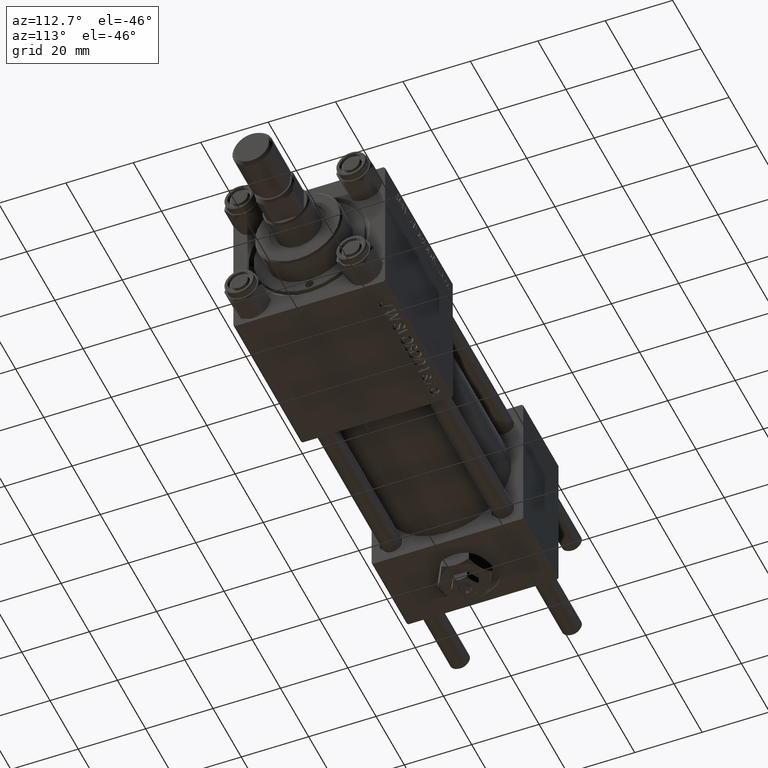
[diagram: clean part render]
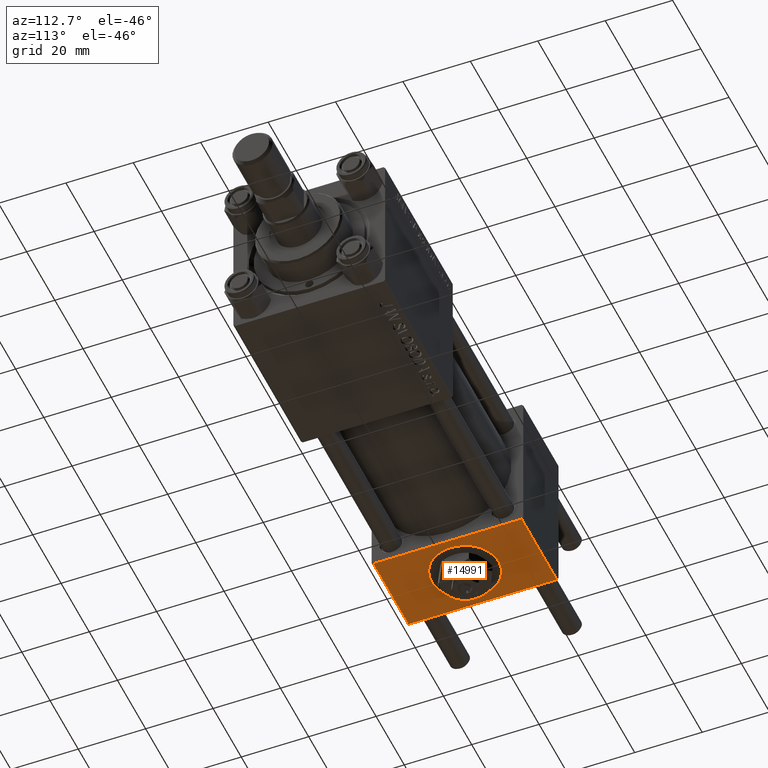
[diagram: same view with one face highlighted and labeled with its STEP entity id]
A machine part, auxiliary view. The second image highlights one B-rep face of the part: STEP entity #14991.
In plain terms, the highlighted planar face has unit normal (0, 0, -1).
Its self-contained STEP definition (entity closure, byte-faithful):
#772 = PLANE ( 'NONE',  #34863 ) ;
#2485 = CARTESIAN_POINT ( 'NONE',  ( 25.00000000000000000, 22.50000000000000000, -22.49999999999999645 ) ) ;
#4989 = CARTESIAN_POINT ( 'NONE',  ( 12.50000000000000000, 10.00000000000000711, -22.50000000000000000 ) ) ;
#5773 = FACE_OUTER_BOUND ( 'NONE', #29412, .T. ) ;
#8220 = VECTOR ( 'NONE', #46588, 1000.000000000000000 ) ;
#10706 = VERTEX_POINT ( 'NONE', #4989 ) ;
#11044 = VERTEX_POINT ( 'NONE', #43681 ) ;
#11177 = CARTESIAN_POINT ( 'NONE',  ( 25.00000000000000000, 21.99999999999999289, -22.49999999999999645 ) ) ;
#12903 = DIRECTION ( 'NONE',  ( 0.000000000000000000, 1.000000000000000000, 2.312964634635742957E-16 ) ) ;
#13679 = DIRECTION ( 'NONE',  ( 0.000000000000000000, 2.312964634635742957E-16, -1.000000000000000000 ) ) ;
#14362 = DIRECTION ( 'NONE',  ( 1.000000000000000000, 0.000000000000000000, 0.000000000000000000 ) ) ;
#14381 = CARTESIAN_POINT ( 'NONE',  ( 0.000000000000000000, -21.99999999999998579, -22.50000000000000711 ) ) ;
#14630 = DIRECTION ( 'NONE',  ( 0.000000000000000000, 1.000000000000000000, 0.000000000000000000 ) ) ;
#14712 = AXIS2_PLACEMENT_3D ( 'NONE', #24281, #36703, #45148 ) ;
#14991 = ADVANCED_FACE ( 'NONE', ( #25819, #5773 ), #772, .T. ) ;
#16471 = VERTEX_POINT ( 'NONE', #51496 ) ;
#17439 = VERTEX_POINT ( 'NONE', #22413 ) ;
#17729 = EDGE_CURVE ( 'NONE', #16471, #10706, #31585, .T. ) ;
#17773 = VECTOR ( 'NONE', #18588, 1000.000000000000000 ) ;
#18588 = DIRECTION ( 'NONE',  ( 0.000000000000000000, -1.000000000000000000, -2.312964634635742957E-16 ) ) ;
#19056 = ORIENTED_EDGE ( 'NONE', *, *, #36367, .T. ) ;
#19361 = EDGE_CURVE ( 'NONE', #41113, #42265, #38651, .T. ) ;
#21932 = CARTESIAN_POINT ( 'NONE',  ( 25.00000000000000000, -21.99999999999997158, -22.50000000000000711 ) ) ;
#22413 = CARTESIAN_POINT ( 'NONE',  ( 0.000000000000000000, -21.99999999999997158, -22.50000000000000711 ) ) ;
#24281 = CARTESIAN_POINT ( 'NONE',  ( 12.50000000000000000, 5.035636875936204037E-15, -22.50000000000000000 ) ) ;
#25291 = CARTESIAN_POINT ( 'NONE',  ( 25.00000000000000000, 22.50000000000000000, -22.49999999999999645 ) ) ;
#25569 = EDGE_CURVE ( 'NONE', #10706, #16471, #30729, .T. ) ;
#25819 = FACE_BOUND ( 'NONE', #46020, .T. ) ;
#29412 = EDGE_LOOP ( 'NONE', ( #45991, #50644, #42792, #19056 ) ) ;
#30213 = DIRECTION ( 'NONE',  ( 0.000000000000000000, -1.000000000000000000, -2.312964634635742957E-16 ) ) ;
#30729 = CIRCLE ( 'NONE', #14712, 10.00000000000000178 ) ;
#31004 = CARTESIAN_POINT ( 'NONE',  ( 0.000000000000000000, 22.50000000000000000, -22.49999999999999645 ) ) ;
#31585 = CIRCLE ( 'NONE', #51861, 10.00000000000000178 ) ;
#32244 = VECTOR ( 'NONE', #30213, 1000.000000000000000 ) ;
#34699 = CARTESIAN_POINT ( 'NONE',  ( 12.50000000000000000, 5.035636875936204037E-15, -22.50000000000000000 ) ) ;
#34863 = AXIS2_PLACEMENT_3D ( 'NONE', #25291, #13679, #12903 ) ;
#34968 = LINE ( 'NONE', #14381, #8220 ) ;
#36367 = EDGE_CURVE ( 'NONE', #42265, #17439, #34968, .T. ) ;
#36703 = DIRECTION ( 'NONE',  ( 0.000000000000000000, -1.734723475976806848E-16, -1.000000000000000000 ) ) ;
#36991 = ORIENTED_EDGE ( 'NONE', *, *, #25569, .F. ) ;
#37070 = CARTESIAN_POINT ( 'NONE',  ( 25.00000000000000000, 21.99999999999999289, -22.49999999999999645 ) ) ;
#38651 = LINE ( 'NONE', #2485, #32244 ) ;
#41113 = VERTEX_POINT ( 'NONE', #37070 ) ;
#42265 = VERTEX_POINT ( 'NONE', #21932 ) ;
#42792 = ORIENTED_EDGE ( 'NONE', *, *, #19361, .T. ) ;
#43133 = LINE ( 'NONE', #11177, #45486 ) ;
#43681 = CARTESIAN_POINT ( 'NONE',  ( 0.000000000000000000, 21.99999999999999289, -22.49999999999999645 ) ) ;
#44816 = EDGE_CURVE ( 'NONE', #11044, #41113, #43133, .T. ) ;
#45148 = DIRECTION ( 'NONE',  ( 0.000000000000000000, 1.000000000000000000, 0.000000000000000000 ) ) ;
#45486 = VECTOR ( 'NONE', #14362, 1000.000000000000000 ) ;
#45991 = ORIENTED_EDGE ( 'NONE', *, *, #51876, .F. ) ;
#46020 = EDGE_LOOP ( 'NONE', ( #36991, #49311 ) ) ;
#46327 = LINE ( 'NONE', #31004, #17773 ) ;
#46588 = DIRECTION ( 'NONE',  ( -1.000000000000000000, 0.000000000000000000, 0.000000000000000000 ) ) ;
#49311 = ORIENTED_EDGE ( 'NONE', *, *, #17729, .F. ) ;
#50644 = ORIENTED_EDGE ( 'NONE', *, *, #44816, .T. ) ;
#50810 = DIRECTION ( 'NONE',  ( 0.000000000000000000, -1.734723475976806848E-16, -1.000000000000000000 ) ) ;
#51496 = CARTESIAN_POINT ( 'NONE',  ( 12.50000000000000178, -9.999999999999996447, -22.50000000000000000 ) ) ;
#51861 = AXIS2_PLACEMENT_3D ( 'NONE', #34699, #50810, #14630 ) ;
#51876 = EDGE_CURVE ( 'NONE', #11044, #17439, #46327, .T. ) ;